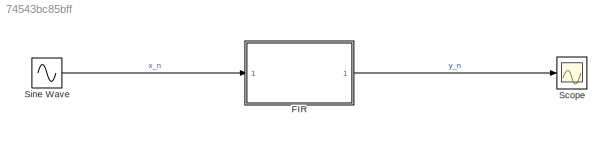
MODEL slx_74543bc85bff
KIND model
CONFIG AbsTol = auto
CONFIG EnableMultiTasking = off
CONFIG FixedStep = auto
CONFIG MaxStep = auto
CONFIG MinStep = auto
CONFIG RelTol = 1e-3
CONFIG SampleTimeConstraint = Unconstrained
CONFIG SolverName = FixedStepDiscrete
CONFIG StartTime = 0.0
CONFIG StopTime = 1
BLOCK [ModelReference] FIR
  ModelNameDialog = FIR_referenced
  ModelReferenceVersion = 1.5
  Ports = [1, 1]
BLOCK [Scope] Scope
  Floating = off
  NumInputPorts = 1
  Ports = [1]
  ScopeSpecificationString = Simulink.scopes.TimeScopeBlockCfg('CurrentConfiguration', extmgr.ConfigurationSet(extmgr.Configuration('Core','General UI',true),extmgr.Configuration('Core','Source UI',true),extmgr.Configuration('Sources','WiredSimulink',true),extmgr.Configuration('Visuals','Time Domain',true,'SerializedDisplays',{struct('MinYLimReal','-5.38623','MaxYLimReal','5.38623','YLabelReal','','MinYLimMag','0.00000','MaxY...<+1394ch>
BLOCK [Sin] Sine Wave
  Amplitude = 5
  Frequency = 2*pi*20
  Ports = [0, 1]
  SampleTime = 0.001
LINE FIR:1 -> Scope:1
LINE Sine Wave:1 -> FIR:1
